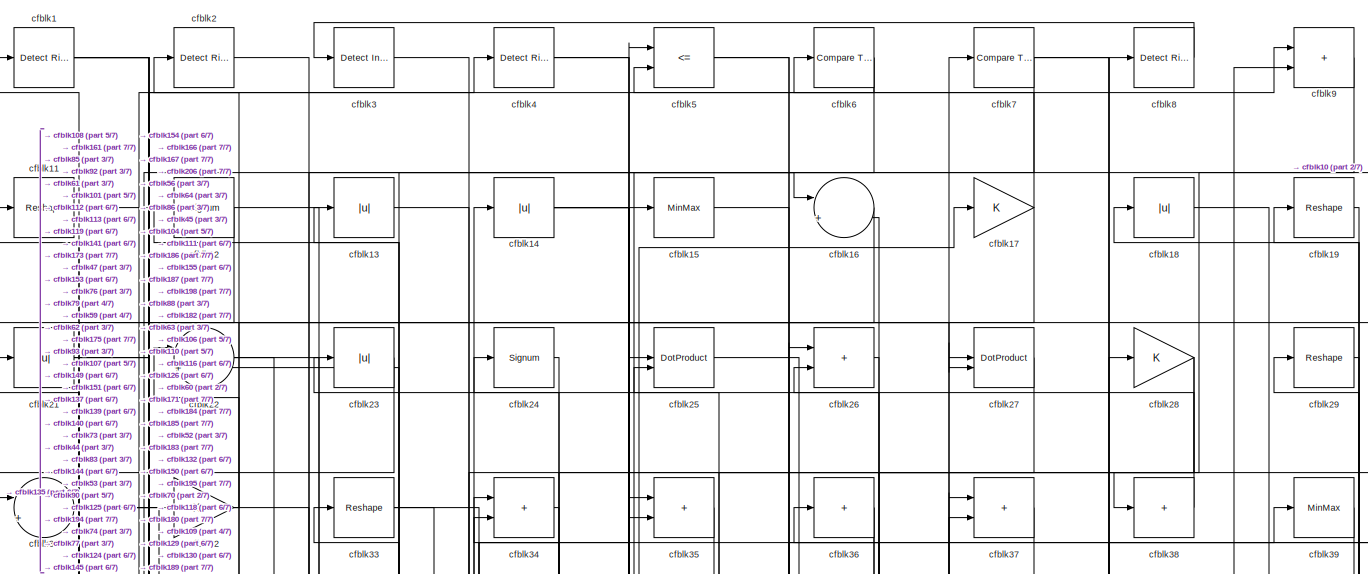
[diagram: root canvas - part 1/7, full width, top band]
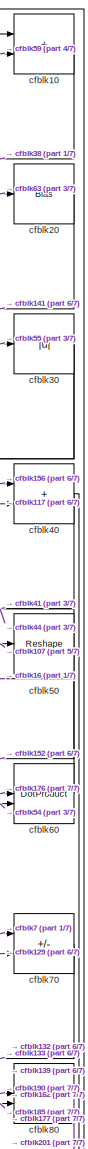
[diagram: root canvas - part 2/7, top right region]
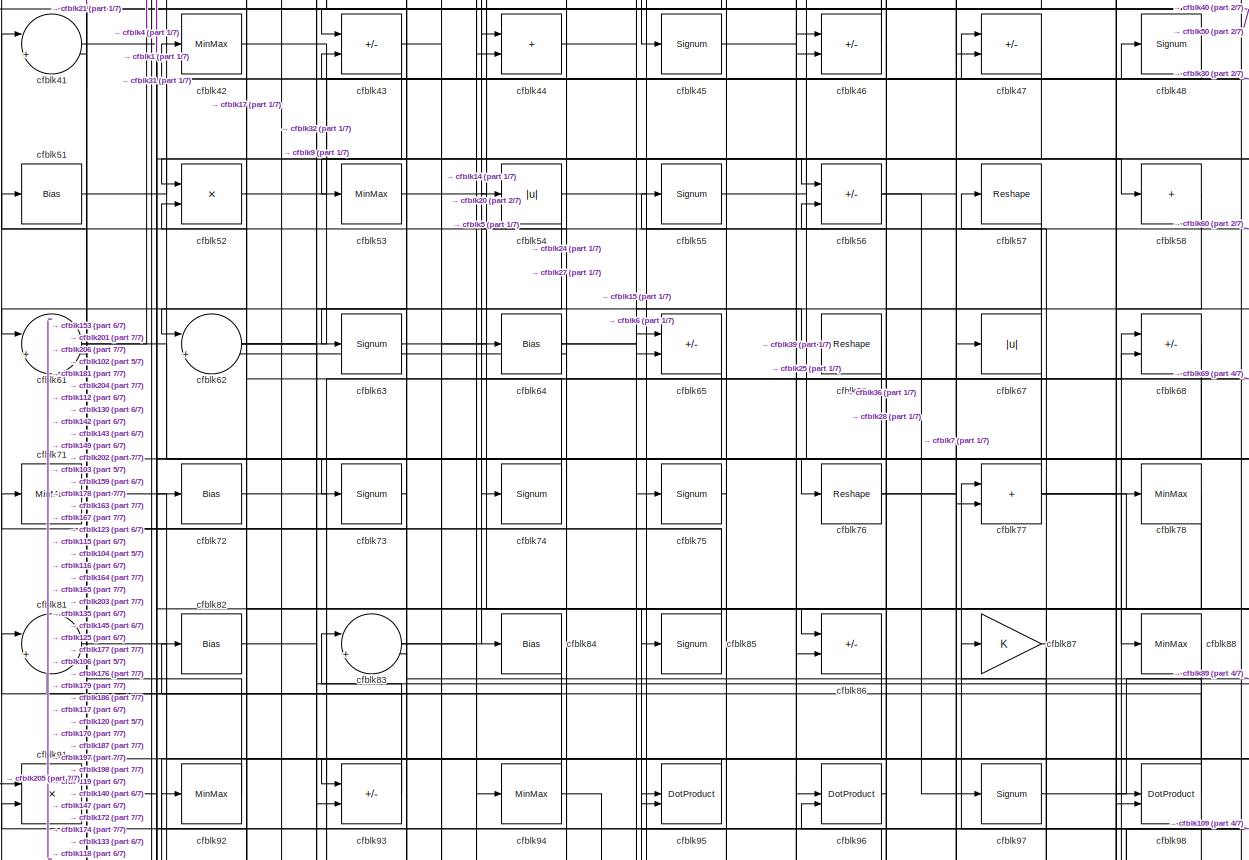
[diagram: root canvas - part 3/7, full width, middle band]
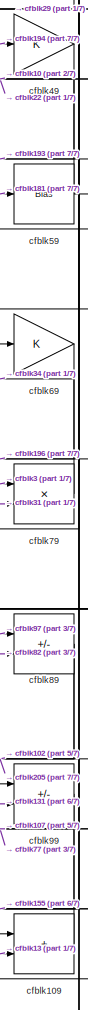
[diagram: root canvas - part 4/7, middle right region]
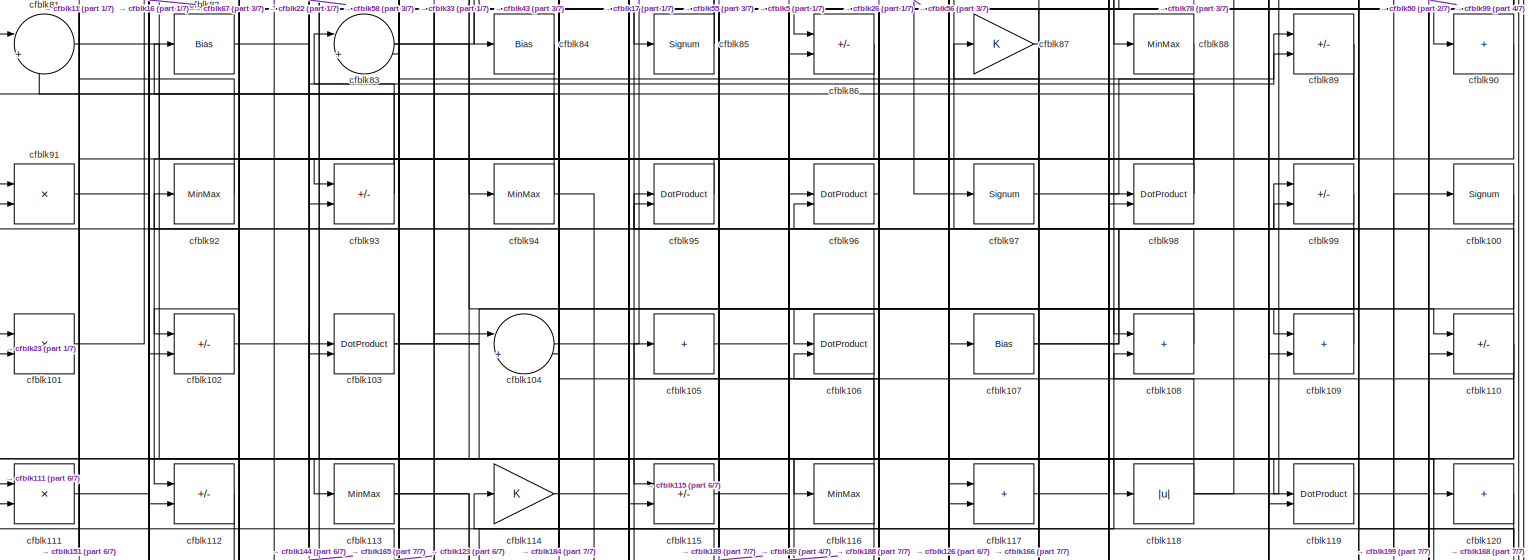
[diagram: root canvas - part 5/7, full width, middle band]
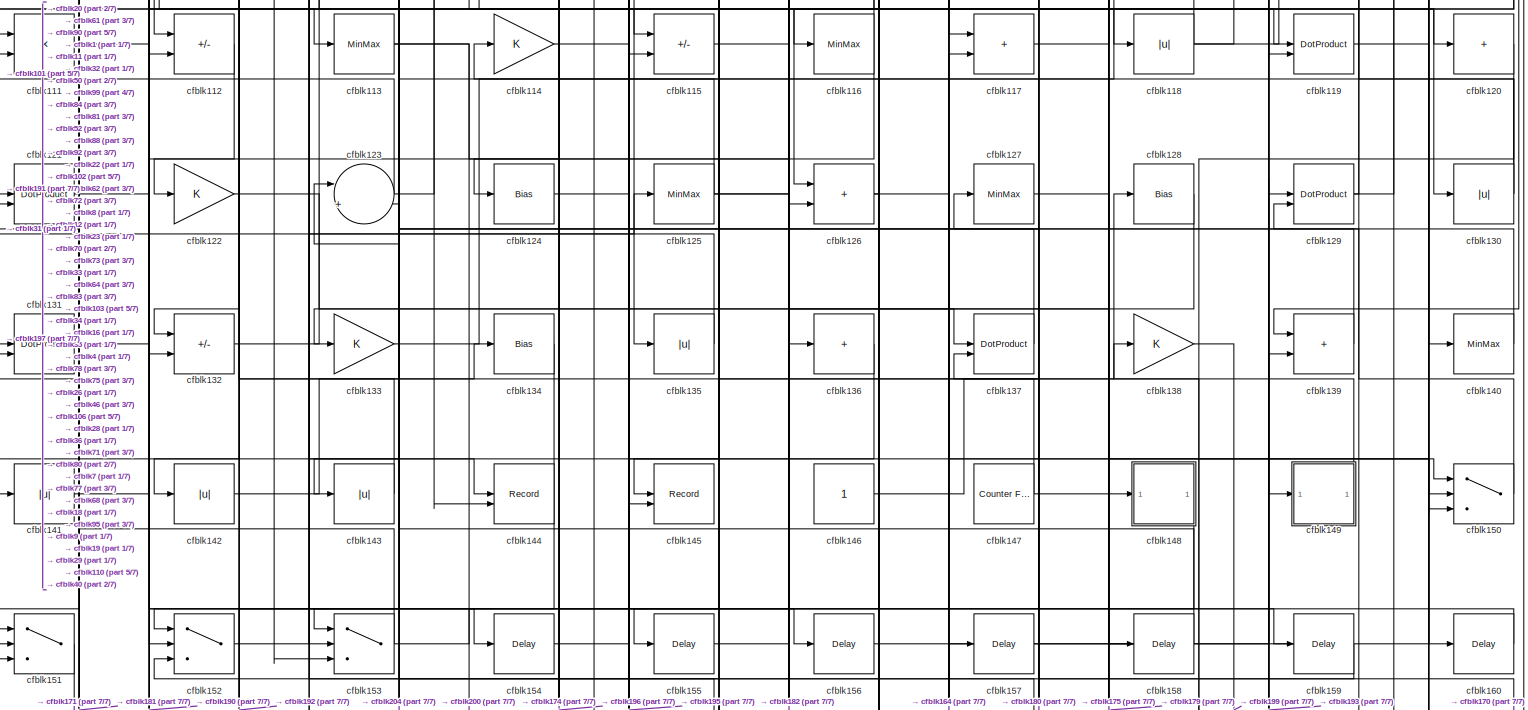
[diagram: root canvas - part 6/7, full width, middle band]
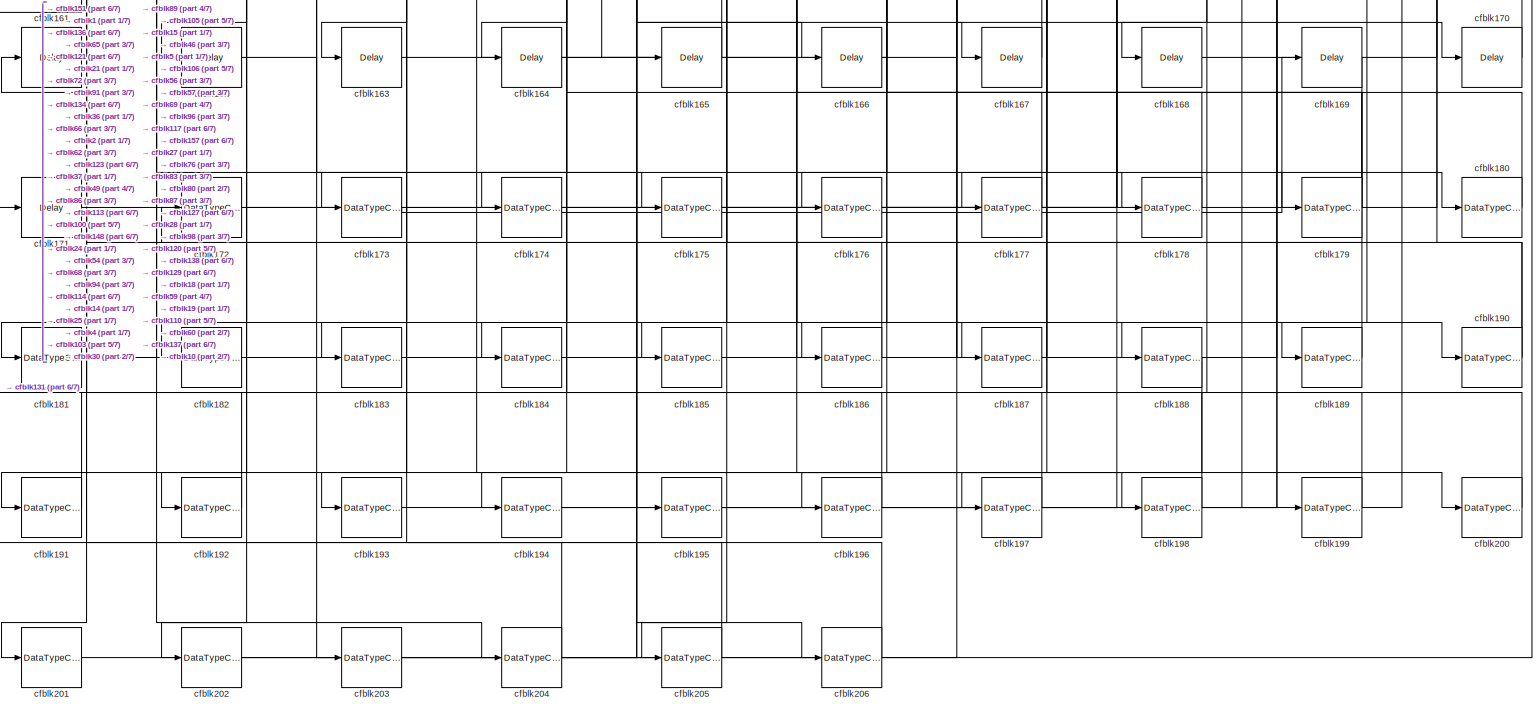
[diagram: root canvas - part 7/7, full width, bottom band]
MODEL slx_bc4d5f4f3c43
KIND model
CONFIG AbsTol = auto
CONFIG EnableMultiTasking = off
CONFIG FixedStep = auto
CONFIG MaxStep = auto
CONFIG MinStep = auto
CONFIG RelTol = 1e-3
CONFIG SampleTimeConstraint = Unconstrained
CONFIG SolverName = VariableStepAuto
CONFIG StartTime = 0.0
CONFIG StopTime = 10.0
BLOCK [Reference] cfblk1  REF=hdlsllib/Logic and Bit
Operations/Detect Rise
Positive
  SourceBlock = hdlsllib/Logic and Bit\nOperations/Detect Rise\nPositive
  SourceType = Detect Rise Positive
BLOCK [Sum] cfblk10
  IconShape = rectangular
BLOCK [Signum] cfblk100
BLOCK [Product] cfblk101
  Inputs = */
  RndMeth = Zero
  SaturateOnIntegerOverflow = on
BLOCK [Sum] cfblk102
  IconShape = rectangular
  Inputs = +-
BLOCK [DotProduct] cfblk103
  OutDataTypeStr = Inherit: Inherit via internal rule
BLOCK [Sum] cfblk104
  Inputs = |++
BLOCK [Sum] cfblk105
  IconShape = rectangular
  Inputs = +
BLOCK [DotProduct] cfblk106
  OutDataTypeStr = Inherit: Inherit via internal rule
BLOCK [Bias] cfblk107
  Bias = 0.0
  SaturateOnIntegerOverflow = off
BLOCK [Sum] cfblk108
  IconShape = rectangular
BLOCK [Sum] cfblk109
  IconShape = rectangular
BLOCK [Reshape] cfblk11
BLOCK [Sum] cfblk110
  IconShape = rectangular
  Inputs = +-
BLOCK [Product] cfblk111
  Inputs = */
  RndMeth = Zero
  SaturateOnIntegerOverflow = on
BLOCK [Sum] cfblk112
  IconShape = rectangular
  Inputs = +-
BLOCK [MinMax] cfblk113
BLOCK [Gain] cfblk114
BLOCK [Sum] cfblk115
  IconShape = rectangular
  Inputs = +-
BLOCK [MinMax] cfblk116
BLOCK [Sum] cfblk117
  IconShape = rectangular
BLOCK [Abs] cfblk118
  SaturateOnIntegerOverflow = off
BLOCK [DotProduct] cfblk119
  OutDataTypeStr = Inherit: Inherit via internal rule
BLOCK [Signum] cfblk12
BLOCK [Sum] cfblk120
  IconShape = rectangular
  Inputs = +
BLOCK [DotProduct] cfblk121
  OutDataTypeStr = Inherit: Inherit via internal rule
BLOCK [Gain] cfblk122
BLOCK [Sum] cfblk123
  Inputs = |++
BLOCK [Bias] cfblk124
  Bias = 0.0
  SaturateOnIntegerOverflow = off
BLOCK [MinMax] cfblk125
BLOCK [Sum] cfblk126
  IconShape = rectangular
BLOCK [MinMax] cfblk127
BLOCK [Bias] cfblk128
  Bias = 0.0
  SaturateOnIntegerOverflow = off
BLOCK [DotProduct] cfblk129
  OutDataTypeStr = Inherit: Inherit via internal rule
BLOCK [Abs] cfblk13
  SaturateOnIntegerOverflow = off
BLOCK [Abs] cfblk130
  SaturateOnIntegerOverflow = off
BLOCK [DotProduct] cfblk131
  OutDataTypeStr = Inherit: Inherit via internal rule
BLOCK [Sum] cfblk132
  IconShape = rectangular
  Inputs = +-
BLOCK [Gain] cfblk133
BLOCK [Bias] cfblk134
  Bias = 0.0
  SaturateOnIntegerOverflow = off
BLOCK [Abs] cfblk135
  SaturateOnIntegerOverflow = off
BLOCK [Sum] cfblk136
  IconShape = rectangular
  Inputs = +
BLOCK [DotProduct] cfblk137
  OutDataTypeStr = Inherit: Inherit via internal rule
BLOCK [Gain] cfblk138
BLOCK [Sum] cfblk139
  IconShape = rectangular
BLOCK [Abs] cfblk14
  SaturateOnIntegerOverflow = off
BLOCK [MinMax] cfblk140
BLOCK [Abs] cfblk141
  SaturateOnIntegerOverflow = off
BLOCK [Abs] cfblk142
  SaturateOnIntegerOverflow = off
BLOCK [Abs] cfblk143
  SaturateOnIntegerOverflow = off
BLOCK [Record] cfblk144
  CompatibilityTag = XY
  FileSettingsInternal = {"entries":[{"content":{"excelSettings":{"content":{},"type":"Streamout.ExcelSettings"}},"type":"Streamout.FileSettingStorage","uuid":""}],"packageUris":["http:\/\/schema.mathworks.com\/mf0\/streamout_blocks\/R2020a"],"version":"1.0"}
  Layout = [1 1]
  SignalsInternal = {"entries":[{"content":{"signals":[{"content":{"blockPath":[],"dimensions":[1],"domain":"","lineColor":"#a2142f","plots":[1],"port":1,"signalID":4446,"signalName":"XY Graph:1"},"type":"RecordBlkView.Signal","uuid":""},{"content":{"blockPath":[],"dimensions":[1],"domain":"","lineColor":"#139fff","plots":[1],"port":2,"signalID":4449,"signalName":"XY Graph:2"},"type":"RecordBlkView.Signal","uuid":""}...<+146ch>
  VisualizationBindings = {"xyplotplugin":{"info":[{"series":[{"bindingParametersList":[{"parameter":"X-Axis","signalID":4446,"signalName":"XY Graph:1"},{"parameter":"Y-Axis","signalID":4449,"signalName":"XY Graph:2"}],"seriesID":5126}],"subplotID":1}]}}
  st = -1
BLOCK [Record] cfblk145
  CompatibilityTag = XY
  FileSettingsInternal = {"entries":[{"content":{"excelSettings":{"content":{},"type":"Streamout.ExcelSettings"}},"type":"Streamout.FileSettingStorage","uuid":""}],"packageUris":["http:\/\/schema.mathworks.com\/mf0\/streamout_blocks\/R2020a"],"version":"1.0"}
  Layout = [1 1]
  SignalsInternal = {"entries":[{"content":{"signals":[{"content":{"blockPath":[],"dimensions":[1],"domain":"","lineColor":"#a2142f","plots":[1],"port":1,"signalID":4454,"signalName":"XY Graph:1"},"type":"RecordBlkView.Signal","uuid":""},{"content":{"blockPath":[],"dimensions":[1],"domain":"","lineColor":"#139fff","plots":[1],"port":2,"signalID":4457,"signalName":"XY Graph:2"},"type":"RecordBlkView.Signal","uuid":""}...<+146ch>
  VisualizationBindings = {"xyplotplugin":{"info":[{"series":[{"bindingParametersList":[{"parameter":"X-Axis","signalID":4454,"signalName":"XY Graph:1"},{"parameter":"Y-Axis","signalID":4457,"signalName":"XY Graph:2"}],"seriesID":57580}],"subplotID":1}]}}
  st = -1
BLOCK [Constant] cfblk146
  SampleTime = -1
BLOCK [Reference] cfblk147  REF=hdlsllib/Sources/Counter
Free-Running
  SourceBlock = hdlsllib/Sources/Counter\nFree-Running
  SourceType = Counter Free-Running
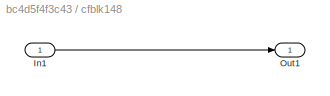
BLOCK [SubSystem] cfblk148
  LibrarySourceBlock = hdlsllib/Ports &\nSubsystems/Subsystem
BLOCK [Inport] cfblk148/In1
BLOCK [Outport] cfblk148/Out1
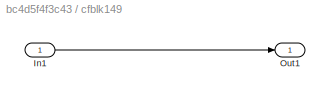
BLOCK [SubSystem] cfblk149
  LibrarySourceBlock = hdlsllib/Ports &\nSubsystems/Subsystem
BLOCK [Inport] cfblk149/In1
BLOCK [Outport] cfblk149/Out1
BLOCK [MinMax] cfblk15
BLOCK [Switch] cfblk150
  InputSameDT = off
  SaturateOnIntegerOverflow = off
BLOCK [Switch] cfblk151
  InputSameDT = off
  SaturateOnIntegerOverflow = off
BLOCK [Switch] cfblk152
  InputSameDT = off
  SaturateOnIntegerOverflow = off
BLOCK [Switch] cfblk153
  InputSameDT = off
  SaturateOnIntegerOverflow = off
BLOCK [Delay] cfblk154
  InputPortMap = u0
  SampleTime = 1
BLOCK [Delay] cfblk155
  InputPortMap = u0
  SampleTime = 1
BLOCK [Delay] cfblk156
  InputPortMap = u0
  SampleTime = 1
BLOCK [Delay] cfblk157
  InputPortMap = u0
  SampleTime = 1
BLOCK [Delay] cfblk158
  InputPortMap = u0
  SampleTime = 1
BLOCK [Delay] cfblk159
  InputPortMap = u0
  SampleTime = 1
BLOCK [Sum] cfblk16
  Inputs = |++
BLOCK [Delay] cfblk160
  InputPortMap = u0
  SampleTime = 1
BLOCK [Delay] cfblk161
  InputPortMap = u0
  SampleTime = 1
BLOCK [Delay] cfblk162
  InputPortMap = u0
  SampleTime = 1
BLOCK [Delay] cfblk163
  InputPortMap = u0
  SampleTime = 1
BLOCK [Delay] cfblk164
  InputPortMap = u0
  SampleTime = 1
BLOCK [Delay] cfblk165
  InputPortMap = u0
  SampleTime = 1
BLOCK [Delay] cfblk166
  InputPortMap = u0
  SampleTime = 1
BLOCK [Delay] cfblk167
  InputPortMap = u0
  SampleTime = 1
BLOCK [Delay] cfblk168
  InputPortMap = u0
  SampleTime = 1
BLOCK [Delay] cfblk169
  InputPortMap = u0
  SampleTime = 1
BLOCK [Gain] cfblk17
BLOCK [Delay] cfblk170
  InputPortMap = u0
  SampleTime = 1
BLOCK [Delay] cfblk171
  InputPortMap = u0
  SampleTime = 1
BLOCK [DataTypeConversion] cfblk172
  OutDataTypeStr = uint8
  RndMeth = Floor
  SaturateOnIntegerOverflow = off
BLOCK [DataTypeConversion] cfblk173
  OutDataTypeStr = uint8
  RndMeth = Floor
  SaturateOnIntegerOverflow = off
BLOCK [DataTypeConversion] cfblk174
  OutDataTypeStr = uint8
  RndMeth = Floor
  SaturateOnIntegerOverflow = off
BLOCK [DataTypeConversion] cfblk175
  OutDataTypeStr = uint8
  RndMeth = Floor
  SaturateOnIntegerOverflow = off
BLOCK [DataTypeConversion] cfblk176
  OutDataTypeStr = uint8
  RndMeth = Floor
  SaturateOnIntegerOverflow = off
BLOCK [DataTypeConversion] cfblk177
  OutDataTypeStr = uint8
  RndMeth = Floor
  SaturateOnIntegerOverflow = off
BLOCK [DataTypeConversion] cfblk178
  OutDataTypeStr = uint8
  RndMeth = Floor
  SaturateOnIntegerOverflow = off
BLOCK [DataTypeConversion] cfblk179
  RndMeth = Floor
  SaturateOnIntegerOverflow = off
BLOCK [Abs] cfblk18
  SaturateOnIntegerOverflow = off
BLOCK [DataTypeConversion] cfblk180
  OutDataTypeStr = uint8
  RndMeth = Floor
  SaturateOnIntegerOverflow = off
BLOCK [DataTypeConversion] cfblk181
  RndMeth = Floor
  SaturateOnIntegerOverflow = off
BLOCK [DataTypeConversion] cfblk182
  OutDataTypeStr = uint8
  RndMeth = Floor
  SaturateOnIntegerOverflow = off
BLOCK [DataTypeConversion] cfblk183
  OutDataTypeStr = uint8
  RndMeth = Floor
  SaturateOnIntegerOverflow = off
BLOCK [DataTypeConversion] cfblk184
  OutDataTypeStr = uint8
  RndMeth = Floor
  SaturateOnIntegerOverflow = off
BLOCK [DataTypeConversion] cfblk185
  OutDataTypeStr = uint8
  RndMeth = Floor
  SaturateOnIntegerOverflow = off
BLOCK [DataTypeConversion] cfblk186
  OutDataTypeStr = uint8
  RndMeth = Floor
  SaturateOnIntegerOverflow = off
BLOCK [DataTypeConversion] cfblk187
  OutDataTypeStr = uint8
  RndMeth = Floor
  SaturateOnIntegerOverflow = off
BLOCK [DataTypeConversion] cfblk188
  OutDataTypeStr = uint8
  RndMeth = Floor
  SaturateOnIntegerOverflow = off
BLOCK [DataTypeConversion] cfblk189
  OutDataTypeStr = uint8
  RndMeth = Floor
  SaturateOnIntegerOverflow = off
BLOCK [Reshape] cfblk19
BLOCK [DataTypeConversion] cfblk190
  RndMeth = Floor
  SaturateOnIntegerOverflow = off
BLOCK [DataTypeConversion] cfblk191
  OutDataTypeStr = uint8
  RndMeth = Floor
  SaturateOnIntegerOverflow = off
BLOCK [DataTypeConversion] cfblk192
  OutDataTypeStr = uint8
  RndMeth = Floor
  SaturateOnIntegerOverflow = off
BLOCK [DataTypeConversion] cfblk193
  OutDataTypeStr = uint8
  RndMeth = Floor
  SaturateOnIntegerOverflow = off
BLOCK [DataTypeConversion] cfblk194
  OutDataTypeStr = uint8
  RndMeth = Floor
  SaturateOnIntegerOverflow = off
BLOCK [DataTypeConversion] cfblk195
  OutDataTypeStr = uint8
  RndMeth = Floor
  SaturateOnIntegerOverflow = off
BLOCK [DataTypeConversion] cfblk196
  OutDataTypeStr = uint8
  RndMeth = Floor
  SaturateOnIntegerOverflow = off
BLOCK [DataTypeConversion] cfblk197
  OutDataTypeStr = uint8
  RndMeth = Floor
  SaturateOnIntegerOverflow = off
BLOCK [DataTypeConversion] cfblk198
  OutDataTypeStr = uint8
  RndMeth = Floor
  SaturateOnIntegerOverflow = off
BLOCK [DataTypeConversion] cfblk199
  RndMeth = Floor
  SaturateOnIntegerOverflow = off
BLOCK [Reference] cfblk2  REF=hdlsllib/Logic and Bit
Operations/Detect Rise
Positive
  SourceBlock = hdlsllib/Logic and Bit\nOperations/Detect Rise\nPositive
  SourceType = Detect Rise Positive
BLOCK [Bias] cfblk20
  Bias = 0.0
  SaturateOnIntegerOverflow = off
BLOCK [DataTypeConversion] cfblk200
  OutDataTypeStr = uint8
  RndMeth = Floor
  SaturateOnIntegerOverflow = off
BLOCK [DataTypeConversion] cfblk201
  OutDataTypeStr = uint8
  RndMeth = Floor
  SaturateOnIntegerOverflow = off
BLOCK [DataTypeConversion] cfblk202
  OutDataTypeStr = uint8
  RndMeth = Floor
  SaturateOnIntegerOverflow = off
BLOCK [DataTypeConversion] cfblk203
  OutDataTypeStr = uint8
  RndMeth = Floor
  SaturateOnIntegerOverflow = off
BLOCK [DataTypeConversion] cfblk204
  RndMeth = Floor
  SaturateOnIntegerOverflow = off
BLOCK [DataTypeConversion] cfblk205
  OutDataTypeStr = uint8
  RndMeth = Floor
  SaturateOnIntegerOverflow = off
BLOCK [DataTypeConversion] cfblk206
  OutDataTypeStr = uint8
  RndMeth = Floor
  SaturateOnIntegerOverflow = off
BLOCK [Abs] cfblk21
  SaturateOnIntegerOverflow = off
BLOCK [Sum] cfblk22
  Inputs = |++
BLOCK [Abs] cfblk23
  SaturateOnIntegerOverflow = off
BLOCK [Signum] cfblk24
BLOCK [DotProduct] cfblk25
  OutDataTypeStr = Inherit: Inherit via internal rule
BLOCK [Sum] cfblk26
  IconShape = rectangular
BLOCK [DotProduct] cfblk27
  OutDataTypeStr = Inherit: Inherit via internal rule
BLOCK [Gain] cfblk28
BLOCK [Reshape] cfblk29
BLOCK [Reference] cfblk3  REF=simulink/Logic and Bit
Operations/Detect
Increase
  LibrarySourceBlock = hdlsllib/Logic and Bit\nOperations/Detect\nIncrease
  SourceBlock = simulink/Logic and Bit\nOperations/Detect\nIncrease
  SourceType = Detect Increase
BLOCK [Abs] cfblk30
  SaturateOnIntegerOverflow = off
BLOCK [Sum] cfblk31
  Inputs = |++
BLOCK [Gain] cfblk32
BLOCK [Reshape] cfblk33
BLOCK [Sum] cfblk34
  IconShape = rectangular
BLOCK [Sum] cfblk35
  IconShape = rectangular
BLOCK [Sum] cfblk36
  IconShape = rectangular
  Inputs = +
BLOCK [Sum] cfblk37
  IconShape = rectangular
BLOCK [Sum] cfblk38
  IconShape = rectangular
  Inputs = +
BLOCK [MinMax] cfblk39
BLOCK [Reference] cfblk4  REF=hdlsllib/Logic and Bit
Operations/Detect Rise
Positive
  SourceBlock = hdlsllib/Logic and Bit\nOperations/Detect Rise\nPositive
  SourceType = Detect Rise Positive
BLOCK [Sum] cfblk40
  IconShape = rectangular
BLOCK [Sum] cfblk41
  Inputs = |++
BLOCK [MinMax] cfblk42
BLOCK [Sum] cfblk43
  IconShape = rectangular
  Inputs = +-
BLOCK [Sum] cfblk44
  IconShape = rectangular
BLOCK [Signum] cfblk45
BLOCK [Sum] cfblk46
  IconShape = rectangular
  Inputs = +-
BLOCK [Sum] cfblk47
  IconShape = rectangular
  Inputs = +-
BLOCK [Signum] cfblk48
BLOCK [Gain] cfblk49
BLOCK [RelationalOperator] cfblk5
  InputSameDT = off
  Operator = <=
  OutDataTypeStr = boolean
BLOCK [Reshape] cfblk50
BLOCK [Bias] cfblk51
  Bias = 0.0
  SaturateOnIntegerOverflow = off
BLOCK [Product] cfblk52
  Inputs = */
  RndMeth = Zero
  SaturateOnIntegerOverflow = on
BLOCK [MinMax] cfblk53
BLOCK [Abs] cfblk54
  SaturateOnIntegerOverflow = off
BLOCK [Signum] cfblk55
BLOCK [Sum] cfblk56
  IconShape = rectangular
  Inputs = +-
BLOCK [Reshape] cfblk57
BLOCK [Sum] cfblk58
  IconShape = rectangular
  Inputs = +
BLOCK [Bias] cfblk59
  Bias = 0.0
  SaturateOnIntegerOverflow = off
BLOCK [Reference] cfblk6  REF=hdlsllib/Logic and Bit
Operations/Compare
To Zero
  SourceBlock = hdlsllib/Logic and Bit\nOperations/Compare\nTo Zero
  SourceType = Compare To Zero
BLOCK [DotProduct] cfblk60
  OutDataTypeStr = Inherit: Inherit via internal rule
BLOCK [Sum] cfblk61
  Inputs = |++
BLOCK [Sum] cfblk62
  Inputs = |++
BLOCK [Signum] cfblk63
BLOCK [Bias] cfblk64
  Bias = 0.0
  SaturateOnIntegerOverflow = off
BLOCK [Sum] cfblk65
  IconShape = rectangular
  Inputs = +-
BLOCK [Reshape] cfblk66
BLOCK [Abs] cfblk67
  SaturateOnIntegerOverflow = off
BLOCK [Sum] cfblk68
  IconShape = rectangular
  Inputs = +-
BLOCK [Gain] cfblk69
BLOCK [Reference] cfblk7  REF=hdlsllib/Logic and Bit
Operations/Compare
To Constant
  SourceBlock = hdlsllib/Logic and Bit\nOperations/Compare\nTo Constant
  SourceType = Compare To Constant
BLOCK [Sum] cfblk70
  IconShape = rectangular
  Inputs = +-
BLOCK [MinMax] cfblk71
BLOCK [Bias] cfblk72
  Bias = 0.0
  SaturateOnIntegerOverflow = off
BLOCK [Signum] cfblk73
BLOCK [Signum] cfblk74
BLOCK [Signum] cfblk75
BLOCK [Reshape] cfblk76
BLOCK [Sum] cfblk77
  IconShape = rectangular
BLOCK [MinMax] cfblk78
BLOCK [Product] cfblk79
  Inputs = */
  RndMeth = Zero
  SaturateOnIntegerOverflow = on
BLOCK [Reference] cfblk8  REF=hdlsllib/Logic and Bit
Operations/Detect Rise
Positive
  SourceBlock = hdlsllib/Logic and Bit\nOperations/Detect Rise\nPositive
  SourceType = Detect Rise Positive
BLOCK [DotProduct] cfblk80
  OutDataTypeStr = Inherit: Inherit via internal rule
BLOCK [Sum] cfblk81
  Inputs = |++
BLOCK [Bias] cfblk82
  Bias = 0.0
  SaturateOnIntegerOverflow = off
BLOCK [Sum] cfblk83
  Inputs = |++
BLOCK [Bias] cfblk84
  Bias = 0.0
  SaturateOnIntegerOverflow = off
BLOCK [Signum] cfblk85
BLOCK [Sum] cfblk86
  IconShape = rectangular
  Inputs = +-
BLOCK [Gain] cfblk87
BLOCK [MinMax] cfblk88
BLOCK [Sum] cfblk89
  IconShape = rectangular
  Inputs = +-
BLOCK [Sum] cfblk9
  IconShape = rectangular
BLOCK [Sum] cfblk90
  IconShape = rectangular
  Inputs = +
BLOCK [Product] cfblk91
  Inputs = */
  RndMeth = Zero
  SaturateOnIntegerOverflow = on
BLOCK [MinMax] cfblk92
BLOCK [Sum] cfblk93
  IconShape = rectangular
  Inputs = +-
BLOCK [MinMax] cfblk94
BLOCK [DotProduct] cfblk95
  OutDataTypeStr = Inherit: Inherit via internal rule
BLOCK [DotProduct] cfblk96
  OutDataTypeStr = Inherit: Inherit via internal rule
BLOCK [Signum] cfblk97
BLOCK [DotProduct] cfblk98
  OutDataTypeStr = Inherit: Inherit via internal rule
BLOCK [Sum] cfblk99
  IconShape = rectangular
  Inputs = +-
LINE cfblk100:1 -> cfblk184:1
LINE cfblk101:1 -> cfblk16:1
LINE cfblk102:1 -> cfblk144:1
NET cfblk103:1 -> cfblk110:1, cfblk115:1
LINE cfblk104:1 -> cfblk17:1
LINE cfblk105:1 -> cfblk188:1
NET cfblk106:1 -> cfblk126:1, cfblk55:1
NET cfblk107:1 -> cfblk50:1, cfblk99:1
LINE cfblk108:1 -> cfblk11:1
LINE cfblk109:1 -> cfblk77:1
LINE cfblk10:1 -> cfblk38:1
NET cfblk110:1 -> cfblk108:2, cfblk151:1, cfblk151:2, cfblk26:2
LINE cfblk111:1 -> cfblk154:1
LINE cfblk112:1 -> cfblk132:2
NET cfblk113:1 -> cfblk126:2, cfblk200:1
LINE cfblk114:1 -> cfblk195:1
LINE cfblk115:1 -> cfblk68:2
NET cfblk116:1 -> cfblk122:1, cfblk62:2
LINE cfblk117:1 -> cfblk40:2
NET cfblk118:1 -> cfblk18:1, cfblk95:2, cfblk9:2
LINE cfblk119:1 -> cfblk160:1
LINE cfblk11:1 -> cfblk119:1
LINE cfblk120:1 -> cfblk168:1
LINE cfblk121:1 -> cfblk190:1
LINE cfblk122:1 -> cfblk158:1
NET cfblk123:1 -> cfblk101:1, cfblk64:1
LINE cfblk124:1 -> cfblk35:2
NET cfblk125:1 -> cfblk137:1, cfblk34:2, cfblk46:1
NET cfblk126:1 -> cfblk150:1, cfblk36:1
LINE cfblk127:1 -> cfblk179:1
LINE cfblk128:1 -> cfblk143:1
NET cfblk129:1 -> cfblk19:1, cfblk70:2
NET cfblk12:1 -> cfblk149:1, cfblk151:3
NET cfblk130:1 -> cfblk29:1, cfblk33:1
LINE cfblk131:1 -> cfblk99:2
LINE cfblk132:1 -> cfblk8:1
LINE cfblk133:1 -> cfblk68:1
LINE cfblk134:1 -> cfblk192:1
LINE cfblk135:1 -> cfblk31:1
LINE cfblk136:1 -> cfblk181:1
LINE cfblk137:1 -> cfblk12:1
LINE cfblk138:1 -> cfblk199:1
LINE cfblk139:1 -> cfblk22:2
LINE cfblk13:1 -> cfblk109:2
LINE cfblk140:1 -> cfblk23:1
LINE cfblk141:1 -> cfblk32:1
LINE cfblk142:1 -> cfblk134:1
LINE cfblk143:1 -> cfblk52:2
LINE cfblk146:1 -> cfblk128:1
NET cfblk147:1 -> cfblk78:1, cfblk95:1
LINE cfblk148/In1:1 -> cfblk148/Out1:1
LINE cfblk148:1 -> cfblk174:1
LINE cfblk149/In1:1 -> cfblk149/Out1:1
LINE cfblk149:1 -> cfblk92:1
NET cfblk14:1 -> cfblk166:1, cfblk167:1, cfblk56:1, cfblk86:2
LINE cfblk150:1 -> cfblk129:2
LINE cfblk151:1 -> cfblk171:1
LINE cfblk152:1 -> cfblk125:1
NET cfblk153:1 -> cfblk156:1, cfblk61:2
LINE cfblk154:1 -> cfblk35:1
LINE cfblk155:1 -> cfblk26:1
LINE cfblk156:1 -> cfblk40:1
LINE cfblk157:1 -> cfblk139:2
LINE cfblk158:1 -> cfblk123:1
LINE cfblk159:1 -> cfblk152:3
LINE cfblk15:1 -> cfblk198:1
LINE cfblk160:1 -> cfblk152:1
LINE cfblk161:1 -> cfblk1:1
LINE cfblk162:1 -> cfblk203:1
LINE cfblk163:1 -> cfblk46:2
LINE cfblk164:1 -> cfblk117:2
LINE cfblk165:1 -> cfblk103:1
LINE cfblk166:1 -> cfblk106:2
LINE cfblk167:1 -> cfblk83:2
LINE cfblk168:1 -> cfblk110:2
LINE cfblk169:1 -> cfblk172:1
LINE cfblk16:1 -> cfblk145:2
LINE cfblk170:1 -> cfblk137:2
LINE cfblk171:1 -> cfblk27:1
LINE cfblk172:1 -> cfblk98:2
LINE cfblk173:1 -> cfblk169:1
LINE cfblk174:1 -> cfblk98:1
LINE cfblk175:1 -> cfblk148:1
LINE cfblk176:1 -> cfblk60:1
LINE cfblk177:1 -> cfblk96:1
LINE cfblk178:1 -> cfblk96:2
NET cfblk179:1 -> cfblk54:1, cfblk56:2
NET cfblk17:1 -> cfblk62:1, cfblk6:1
LINE cfblk180:1 -> cfblk127:1
NET cfblk181:1 -> cfblk59:1, cfblk72:1
LINE cfblk182:1 -> cfblk136:1
LINE cfblk183:1 -> cfblk25:1
LINE cfblk184:1 -> cfblk37:1
LINE cfblk185:1 -> cfblk37:2
LINE cfblk186:1 -> cfblk25:2
LINE cfblk187:1 -> cfblk57:1
LINE cfblk188:1 -> cfblk191:1
LINE cfblk189:1 -> cfblk105:1
LINE cfblk18:1 -> cfblk180:1
NET cfblk190:1 -> cfblk161:1, cfblk80:1
LINE cfblk191:1 -> cfblk121:1
LINE cfblk192:1 -> cfblk121:2
LINE cfblk193:1 -> cfblk129:1
LINE cfblk194:1 -> cfblk49:1
LINE cfblk195:1 -> cfblk28:1
LINE cfblk196:1 -> cfblk114:1
LINE cfblk197:1 -> cfblk131:1
LINE cfblk198:1 -> cfblk87:1
NET cfblk199:1 -> cfblk100:1, cfblk131:2
LINE cfblk19:1 -> cfblk189:1
NET cfblk1:1 -> cfblk112:2, cfblk113:1, cfblk27:2, cfblk47:2
LINE cfblk200:1 -> cfblk138:1
LINE cfblk201:1 -> cfblk10:1
LINE cfblk202:1 -> cfblk65:1
LINE cfblk203:1 -> cfblk65:2
NET cfblk204:1 -> cfblk123:2, cfblk157:1
LINE cfblk205:1 -> cfblk91:1
LINE cfblk206:1 -> cfblk91:2
LINE cfblk20:1 -> cfblk141:1
NET cfblk21:1 -> cfblk173:1, cfblk9:1
NET cfblk22:1 -> cfblk107:1, cfblk153:3
LINE cfblk23:1 -> cfblk101:2
LINE cfblk24:1 -> cfblk194:1
LINE cfblk25:1 -> cfblk88:1
LINE cfblk26:1 -> cfblk106:1
LINE cfblk27:1 -> cfblk74:1
NET cfblk28:1 -> cfblk116:1, cfblk44:2
LINE cfblk29:1 -> cfblk109:1
LINE cfblk2:1 -> cfblk175:1
NET cfblk30:1 -> cfblk185:1, cfblk80:2
NET cfblk31:1 -> cfblk153:2, cfblk76:1, cfblk79:2
NET cfblk32:1 -> cfblk2:1, cfblk77:2
NET cfblk33:1 -> cfblk144:2, cfblk90:1
LINE cfblk34:1 -> cfblk124:1
LINE cfblk35:1 -> cfblk111:2
NET cfblk36:1 -> cfblk182:1, cfblk63:1
LINE cfblk37:1 -> cfblk183:1
LINE cfblk38:1 -> cfblk13:1
LINE cfblk39:1 -> cfblk53:1
LINE cfblk3:1 -> cfblk79:1
NET cfblk40:1 -> cfblk139:1, cfblk41:2
LINE cfblk41:1 -> cfblk85:1
LINE cfblk42:1 -> cfblk58:1
NET cfblk43:1 -> cfblk104:1, cfblk52:1
LINE cfblk44:1 -> cfblk75:1
LINE cfblk45:1 -> cfblk39:1
LINE cfblk46:1 -> cfblk43:1
LINE cfblk47:1 -> cfblk84:1
LINE cfblk48:1 -> cfblk43:2
LINE cfblk49:1 -> cfblk193:1
NET cfblk4:1 -> cfblk150:3, cfblk206:1
NET cfblk50:1 -> cfblk152:2, cfblk44:1
LINE cfblk51:1 -> cfblk48:1
LINE cfblk52:1 -> cfblk7:1
LINE cfblk53:1 -> cfblk5:1
NET cfblk54:1 -> cfblk60:2, cfblk61:1
LINE cfblk55:1 -> cfblk30:1
NET cfblk56:1 -> cfblk120:1, cfblk97:1
LINE cfblk57:1 -> cfblk186:1
LINE cfblk58:1 -> cfblk103:2
NET cfblk59:1 -> cfblk10:2, cfblk22:1
NET cfblk5:1 -> cfblk108:1, cfblk187:1
LINE cfblk60:1 -> cfblk16:2
NET cfblk61:1 -> cfblk4:1, cfblk94:1
NET cfblk62:1 -> cfblk159:1, cfblk178:1, cfblk47:1
LINE cfblk63:1 -> cfblk20:1
NET cfblk64:1 -> cfblk15:1, cfblk66:1
LINE cfblk65:1 -> cfblk201:1
LINE cfblk66:1 -> cfblk202:1
NET cfblk67:1 -> cfblk102:2, cfblk41:1
NET cfblk68:1 -> cfblk164:1, cfblk86:1
LINE cfblk69:1 -> cfblk196:1
NET cfblk6:1 -> cfblk45:1, cfblk5:2
LINE cfblk70:1 -> cfblk133:1
LINE cfblk71:1 -> cfblk117:1
LINE cfblk72:1 -> cfblk118:1
LINE cfblk73:1 -> cfblk153:1
LINE cfblk74:1 -> cfblk42:1
LINE cfblk75:1 -> cfblk145:1
NET cfblk76:1 -> cfblk170:1, cfblk67:1
NET cfblk77:1 -> cfblk119:2, cfblk140:1, cfblk24:1, cfblk69:1
NET cfblk78:1 -> cfblk104:2, cfblk135:1
LINE cfblk79:1 -> cfblk34:1
NET cfblk7:1 -> cfblk150:2, cfblk70:1, cfblk73:1
NET cfblk80:1 -> cfblk132:1, cfblk162:1, cfblk177:1
LINE cfblk81:1 -> cfblk130:1
LINE cfblk82:1 -> cfblk89:2
NET cfblk83:1 -> cfblk115:2, cfblk14:1
LINE cfblk84:1 -> cfblk112:1
NET cfblk85:1 -> cfblk21:1, cfblk51:1
LINE cfblk86:1 -> cfblk163:1
LINE cfblk87:1 -> cfblk197:1
LINE cfblk88:1 -> cfblk142:1
NET cfblk89:1 -> cfblk102:1, cfblk205:1
LINE cfblk8:1 -> cfblk3:1
LINE cfblk90:1 -> cfblk111:1
LINE cfblk91:1 -> cfblk204:1
LINE cfblk92:1 -> cfblk31:2
NET cfblk93:1 -> cfblk81:2, cfblk83:1
NET cfblk94:1 -> cfblk165:1, cfblk82:1
LINE cfblk95:1 -> cfblk93:1
LINE cfblk96:1 -> cfblk176:1
LINE cfblk97:1 -> cfblk89:1
NET cfblk98:1 -> cfblk71:1, cfblk81:1
LINE cfblk99:1 -> cfblk155:1
LINE cfblk9:1 -> cfblk93:2
note: NET lines group one-source signal fan-out (src -> all destinations, sorted); 1:1 wires keep LINE
